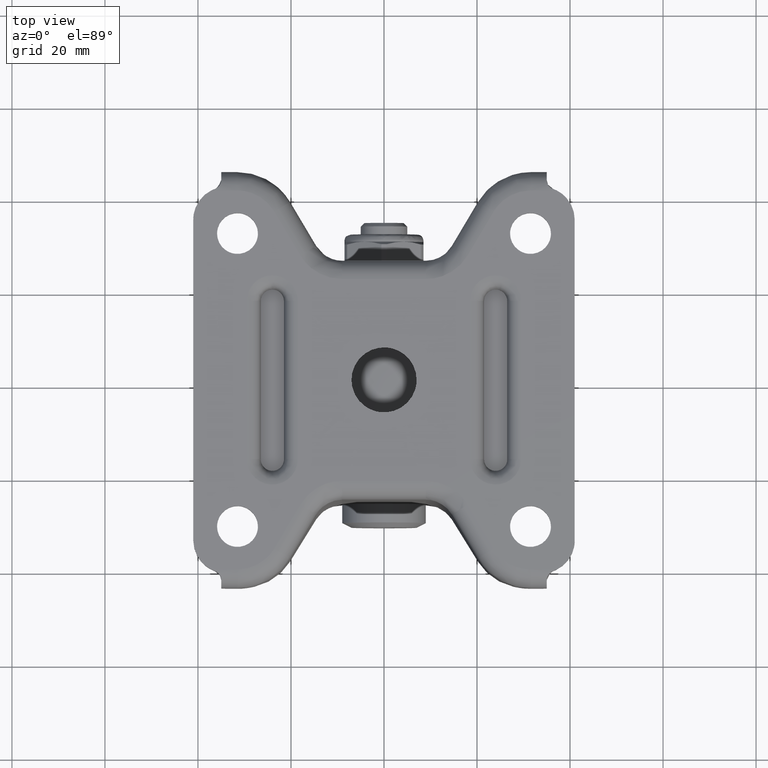
[diagram: clean part render]
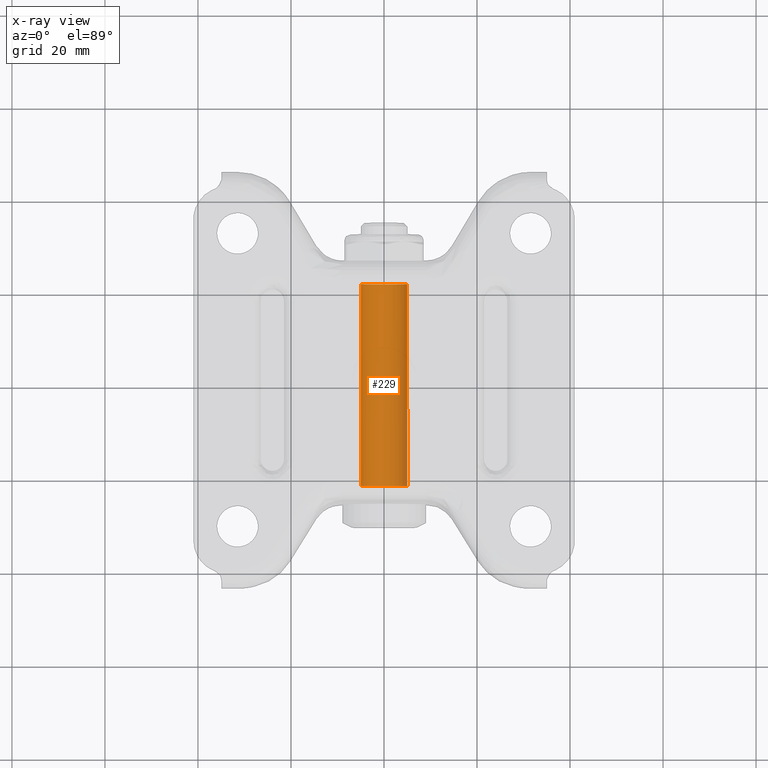
[diagram: x-ray — body ghosted, one internal face saturated and labeled with its STEP entity id]
A machine part, top view, then the same camera in x-ray: the body is ghosted and one INTERNAL B-rep face — a face not visible from any outside direction — is saturated and labeled: STEP entity #229.
In plain terms, the highlighted face is a freeform B-spline surface patch.
Its self-contained STEP definition (entity closure, byte-faithful):
#64=CARTESIAN_POINT('',(4.961331069103567,21.699997000000049,-61.879359989407980));
#65=VERTEX_POINT('',#64);
#79=CARTESIAN_POINT('',(4.961331069104348,-21.699997000000049,-61.879359989414240));
#80=VERTEX_POINT('',#79);
#81=CARTESIAN_POINT('',(4.961331069103567,21.699997000000049,-61.879359989407980));
#82=CARTESIAN_POINT('',(4.961331069104348,-21.699997000000049,-61.879359989414240));
#83=QUASI_UNIFORM_CURVE('',1,(#81,#82),.UNSPECIFIED.,.F.,.U.);
#84=EDGE_CURVE('',#65,#80,#83,.T.);
#101=CARTESIAN_POINT('',(-4.999809615318277,-21.699997000000049,-62.543632677787400));
#102=VERTEX_POINT('',#101);
#118=CARTESIAN_POINT('',(-4.999809615318462,21.699997000000039,-62.543632677766119));
#119=VERTEX_POINT('',#118);
#120=CARTESIAN_POINT('',(-4.999809615318462,21.699997000000039,-62.543632677766119));
#121=CARTESIAN_POINT('',(-4.999809615318277,-21.699997000000049,-62.543632677787400));
#122=QUASI_UNIFORM_CURVE('',1,(#120,#121),.UNSPECIFIED.,.F.,.U.);
#123=EDGE_CURVE('',#119,#102,#122,.T.);
#143=CARTESIAN_POINT('',(-4.999809615320855,22.784996850000049,-62.543632677491871));
#144=CARTESIAN_POINT('',(-4.956176937828985,22.784996850000045,-67.543442292812728));
#145=CARTESIAN_POINT('',(0.043632677491869,22.784996850000049,-67.499809615320856));
#146=CARTESIAN_POINT('',(5.043442292812725,22.784996850000045,-67.456176937828985));
#147=CARTESIAN_POINT('',(4.999809615320855,22.784996850000049,-62.456367322508129));
#148=CARTESIAN_POINT('',(4.997282156301378,22.784996850000049,-62.166749205209122));
#149=CARTESIAN_POINT('',(4.961331069127693,22.784996850000059,-61.879359989600843));
#150=CARTESIAN_POINT('',(-4.999809615320855,-22.812121846250061,-62.543632677491871));
#151=CARTESIAN_POINT('',(-4.956176937828985,-22.812121846250054,-67.543442292812728));
#152=CARTESIAN_POINT('',(0.043632677491869,-22.812121846250061,-67.499809615320856));
#153=CARTESIAN_POINT('',(5.043442292812725,-22.812121846250054,-67.456176937828985));
#154=CARTESIAN_POINT('',(4.999809615320855,-22.812121846250061,-62.456367322508129));
#155=CARTESIAN_POINT('',(4.997282156301378,-22.812121846250058,-62.166749205209122));
#156=CARTESIAN_POINT('',(4.961331069127693,-22.812121846250061,-61.879359989600843));
#164=(BOUNDED_SURFACE()B_SPLINE_SURFACE(2,1,((#143,#150),(#144,#151),(#145,#152),(#146,#153),(#147,#154),(#148,#155),(#149,#156)),.UNSPECIFIED.,.F.,.F.,.U.)B_SPLINE_SURFACE_WITH_KNOTS((3,2,2,3),(2,2),(0.0,8.284271247461902,16.568542494923800,17.231284194720761),(0.0,45.597118696250106),.UNSPECIFIED.)GEOMETRIC_REPRESENTATION_ITEM()RATIONAL_B_SPLINE_SURFACE(((1.0,1.0),(0.707106781186548,0.707106781186548),(1.0,1.0),(0.707106781186548,0.707106781186548),(1.0,1.0),(0.976568542494924,0.976568542494924),(0.956886118190660,0.956886118190660)))REPRESENTATION_ITEM('')SURFACE());
#165=CARTESIAN_POINT('',(0.0,21.699997000000049,-67.500000000000000));
#166=VERTEX_POINT('',#165);
#167=CARTESIAN_POINT('',(4.961331069103567,21.699997000000049,-61.879359989407980));
#168=CARTESIAN_POINT('',(5.0,21.699997000000049,-62.188475362137396));
#169=CARTESIAN_POINT('',(5.0,21.699997000000049,-62.500000000000000));
#170=CARTESIAN_POINT('',(5.000000000000001,21.699997000000046,-67.500000000000000));
#171=CARTESIAN_POINT('',(0.0,21.699997000000049,-67.500000000000000));
#179=(BOUNDED_CURVE()B_SPLINE_CURVE(2,(#167,#168,#169,#170,#171),.UNSPECIFIED.,.F.,.U.)B_SPLINE_CURVE_WITH_KNOTS((3,2,3),(0.228526071016187,0.250000000000000,0.500000000000000),.UNSPECIFIED.)CURVE()GEOMETRIC_REPRESENTATION_ITEM()RATIONAL_B_SPLINE_CURVE((0.954005430249274,0.974841727277438,1.0,0.707106781186548,1.0))REPRESENTATION_ITEM(''));
#180=EDGE_CURVE('',#65,#166,#179,.T.);
#181=ORIENTED_EDGE('',*,*,#180,.T.);
#182=CARTESIAN_POINT('',(0.0,21.699997000000049,-67.500000000000000));
#183=CARTESIAN_POINT('',(-4.956556052431114,21.699997000000046,-67.500000000000000));
#184=CARTESIAN_POINT('',(-4.999809615318462,21.699997000000042,-62.543632677766119));
#192=(BOUNDED_CURVE()B_SPLINE_CURVE(2,(#182,#183,#184),.UNSPECIFIED.,.F.,.U.)B_SPLINE_CURVE_WITH_KNOTS((3,3),(0.500000000000000,0.748460105645689),.UNSPECIFIED.)CURVE()GEOMETRIC_REPRESENTATION_ITEM()RATIONAL_B_SPLINE_CURVE((1.0,0.708910879642815,0.996414028055685))REPRESENTATION_ITEM(''));
#193=EDGE_CURVE('',#166,#119,#192,.T.);
#194=ORIENTED_EDGE('',*,*,#193,.T.);
#195=ORIENTED_EDGE('',*,*,#123,.T.);
#196=CARTESIAN_POINT('',(0.0,-21.699997000000049,-67.500000000000000));
#197=VERTEX_POINT('',#196);
#198=CARTESIAN_POINT('',(-4.999809615318278,-21.699997000000049,-62.543632677787407));
#199=CARTESIAN_POINT('',(-4.956556052388925,-21.699997000000053,-67.500000000000000));
#200=CARTESIAN_POINT('',(0.0,-21.699997000000049,-67.500000000000000));
#208=(BOUNDED_CURVE()B_SPLINE_CURVE(2,(#198,#199,#200),.UNSPECIFIED.,.F.,.U.)B_SPLINE_CURVE_WITH_KNOTS((3,3),(0.751539894355810,1.0),.UNSPECIFIED.)CURVE()GEOMETRIC_REPRESENTATION_ITEM()RATIONAL_B_SPLINE_CURVE((0.996414028052216,0.708910879644571,1.0))REPRESENTATION_ITEM(''));
#209=EDGE_CURVE('',#102,#197,#208,.T.);
#210=ORIENTED_EDGE('',*,*,#209,.T.);
#211=CARTESIAN_POINT('',(0.0,-21.699997000000049,-67.500000000000000));
#212=CARTESIAN_POINT('',(5.000000000000001,-21.699997000000046,-67.500000000000000));
#213=CARTESIAN_POINT('',(5.0,-21.699997000000049,-62.500000000000000));
#214=CARTESIAN_POINT('',(5.0,-21.699997000000046,-62.188475362143727));
#215=CARTESIAN_POINT('',(4.961331069104349,-21.699997000000049,-61.879359989414240));
#223=(BOUNDED_CURVE()B_SPLINE_CURVE(2,(#211,#212,#213,#214,#215),.UNSPECIFIED.,.F.,.U.)B_SPLINE_CURVE_WITH_KNOTS((3,2,3),(0.0,0.250000000000000,0.271473928983388),.UNSPECIFIED.)CURVE()GEOMETRIC_REPRESENTATION_ITEM()RATIONAL_B_SPLINE_CURVE((1.0,0.707106781186548,1.0,0.974841727277936,0.954005430250099))REPRESENTATION_ITEM(''));
#224=EDGE_CURVE('',#197,#80,#223,.T.);
#225=ORIENTED_EDGE('',*,*,#224,.T.);
#226=ORIENTED_EDGE('',*,*,#84,.F.);
#227=EDGE_LOOP('',(#181,#194,#195,#210,#225,#226));
#228=FACE_OUTER_BOUND('',#227,.T.);
#229=ADVANCED_FACE('',(#228),#164,.F.);